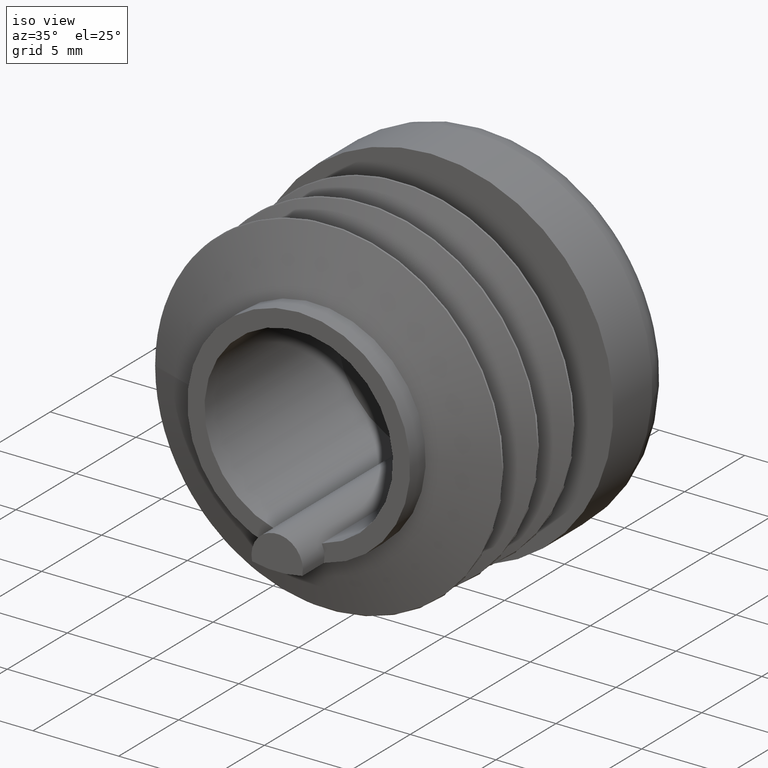
[diagram: clean part render]
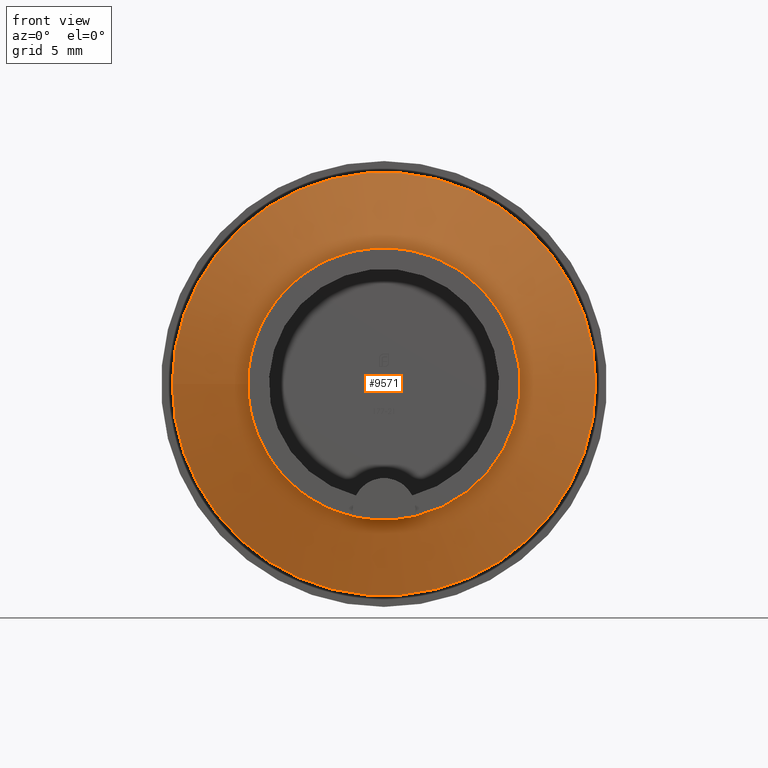
[diagram: tour spotlight — one face highlighted and labeled with its STEP entity id]
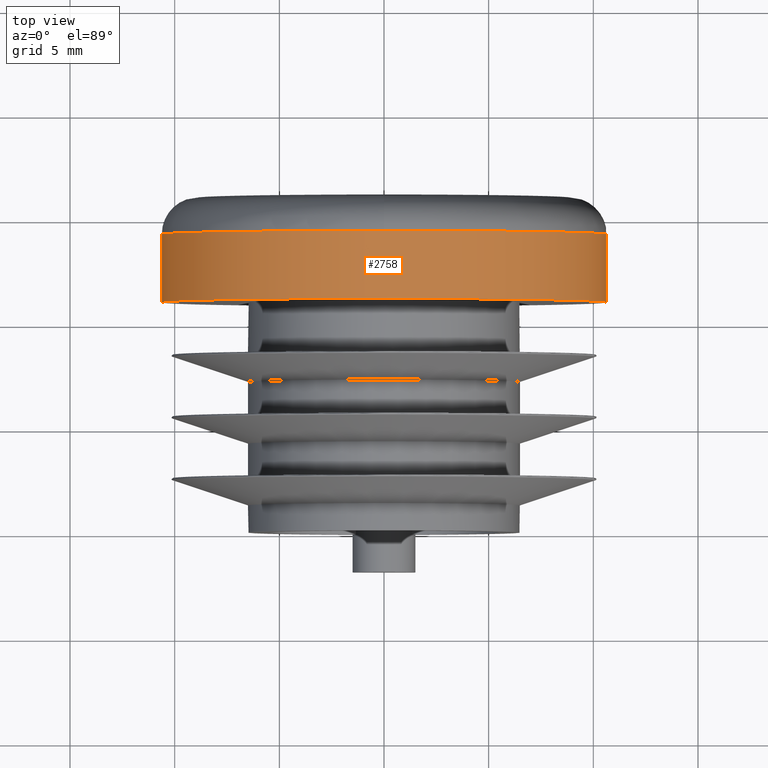
[diagram: tour spotlight — one face highlighted and labeled with its STEP entity id]
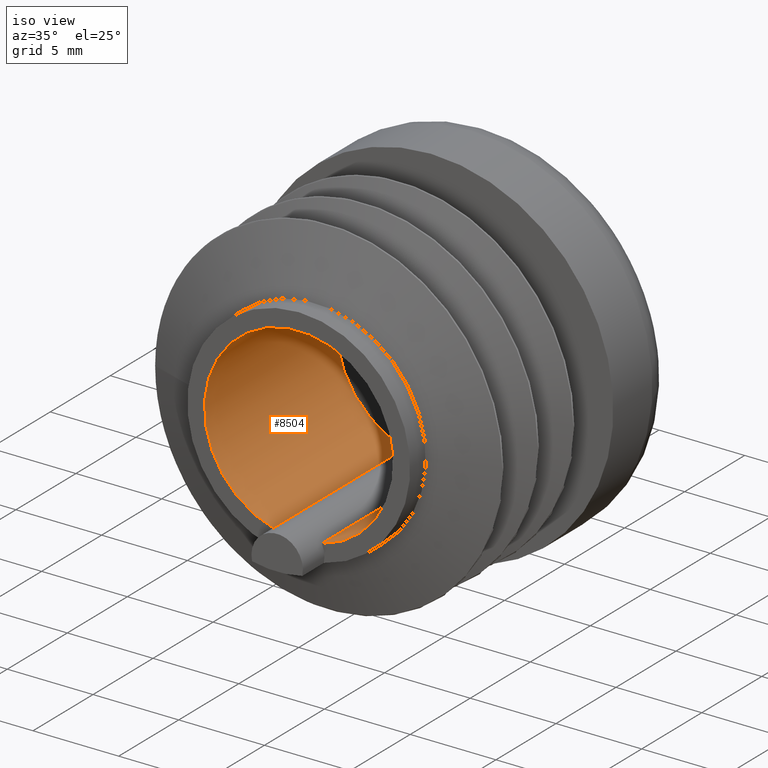
[diagram: tour spotlight — one face highlighted and labeled with its STEP entity id]
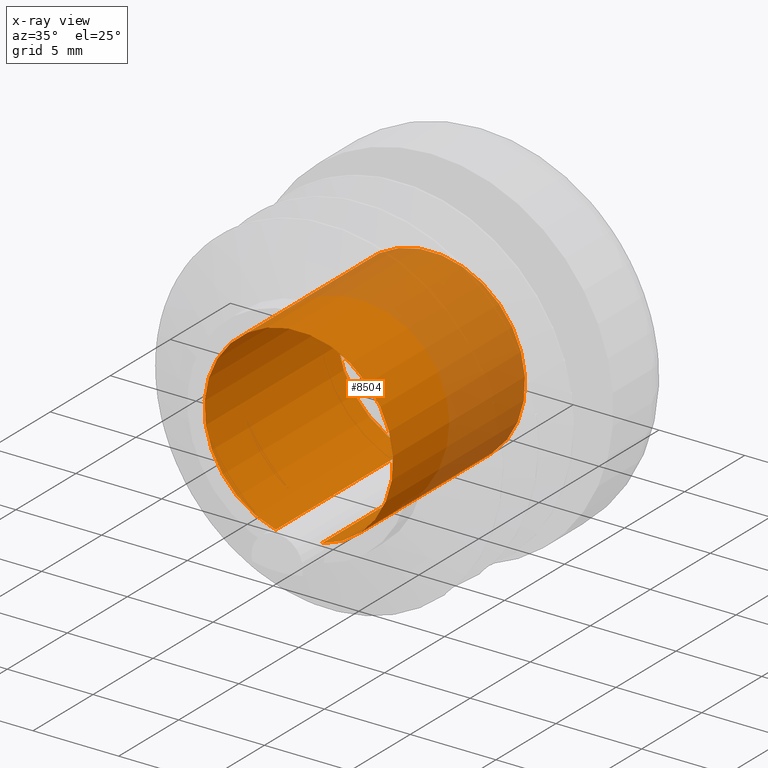
[diagram: x-ray of the same camera — body ghosted, this tour face saturated]
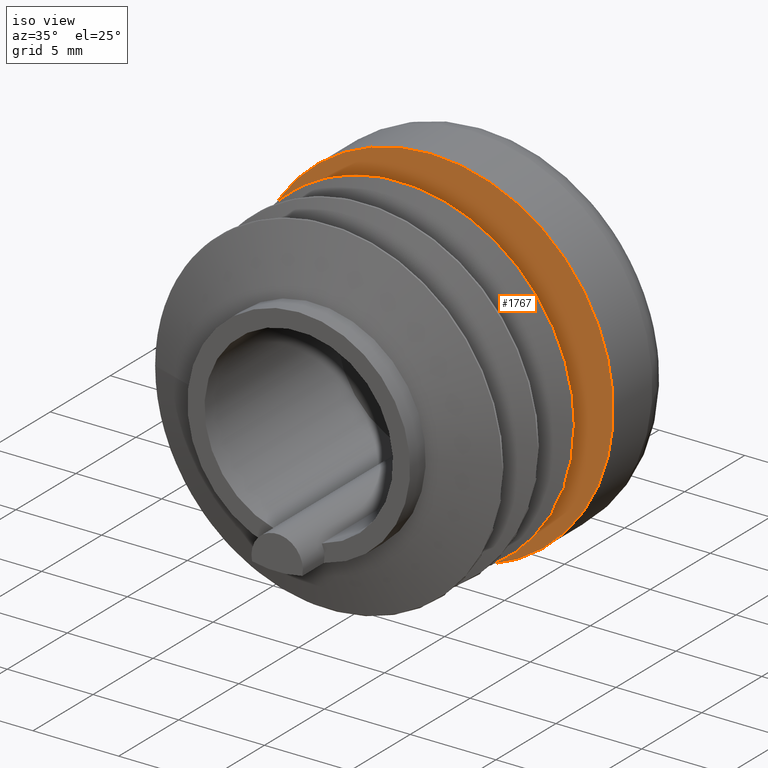
[diagram: tour spotlight — one face highlighted and labeled with its STEP entity id]
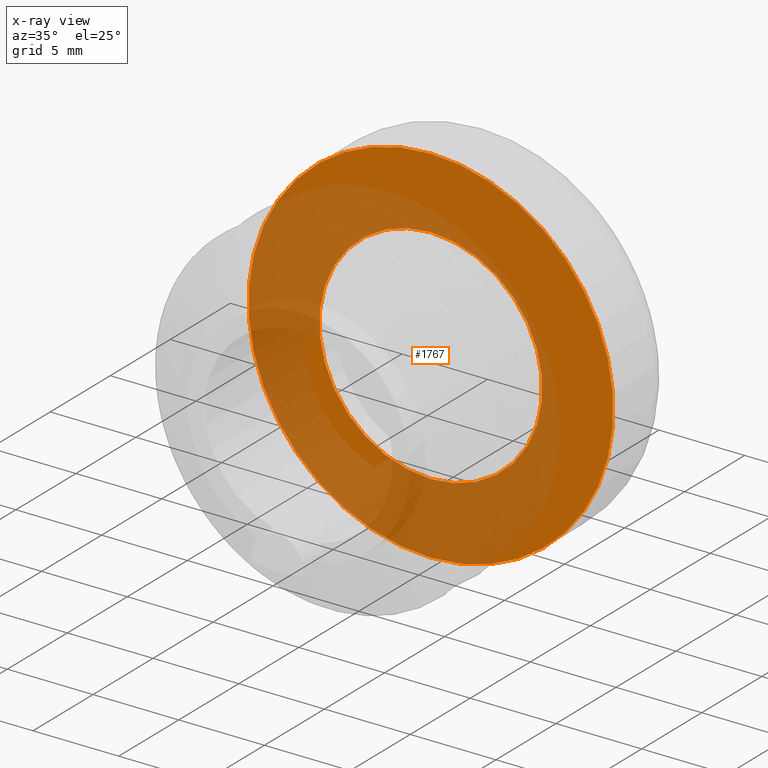
[diagram: x-ray of the same camera — body ghosted, this tour face saturated]
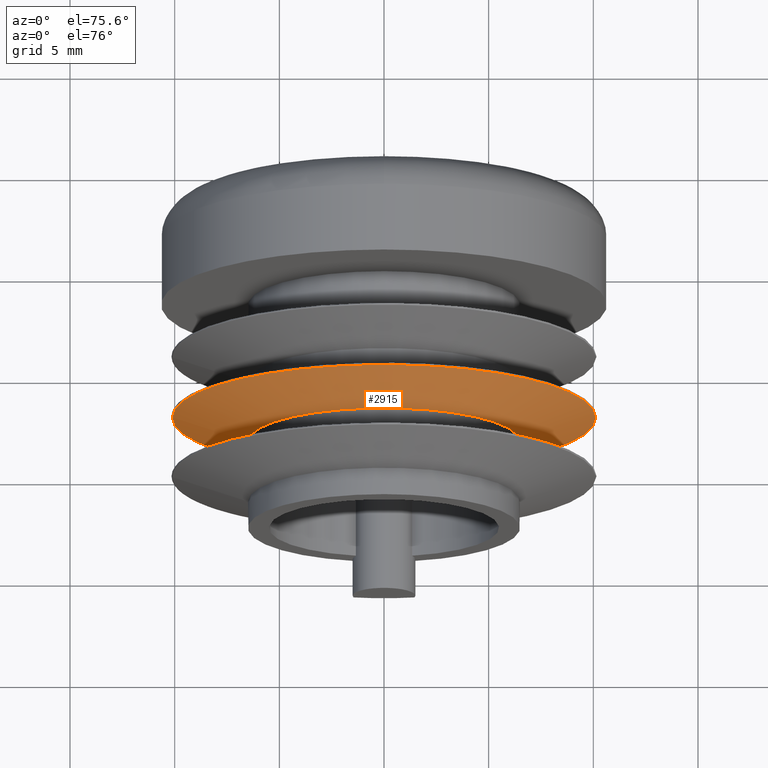
[diagram: tour spotlight — one face highlighted and labeled with its STEP entity id]
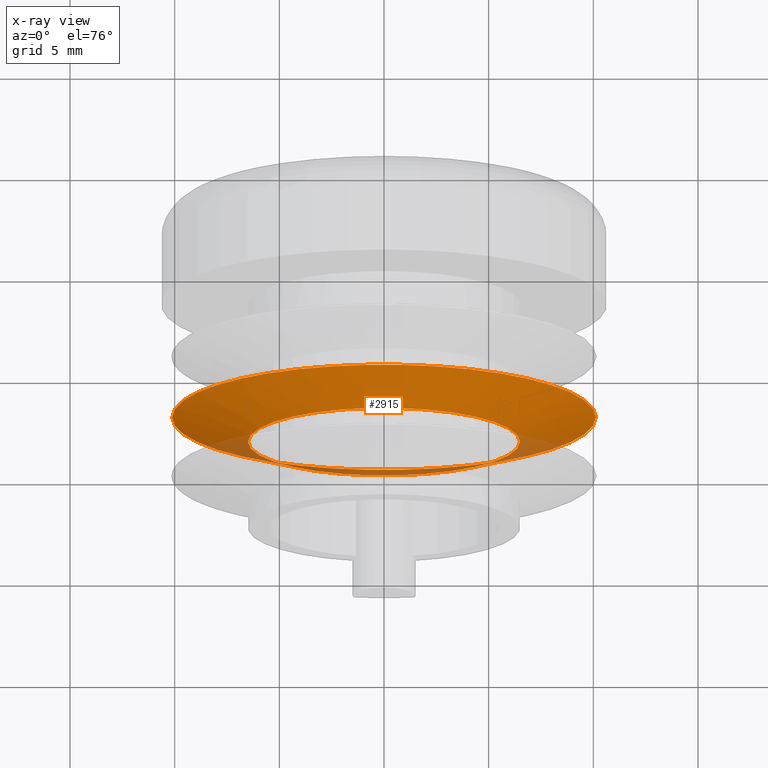
[diagram: x-ray of the same camera — body ghosted, this tour face saturated]
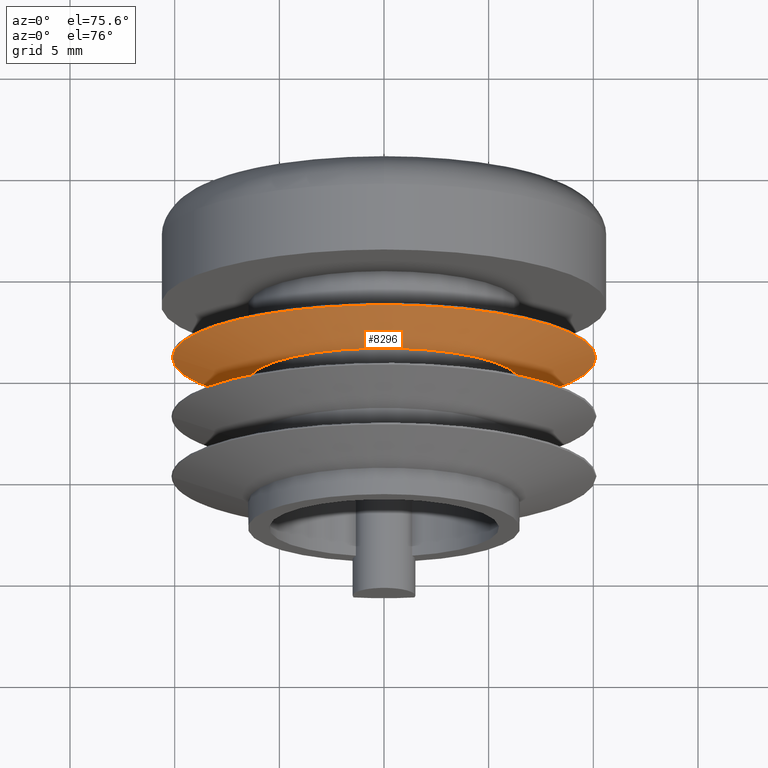
[diagram: tour spotlight — one face highlighted and labeled with its STEP entity id]
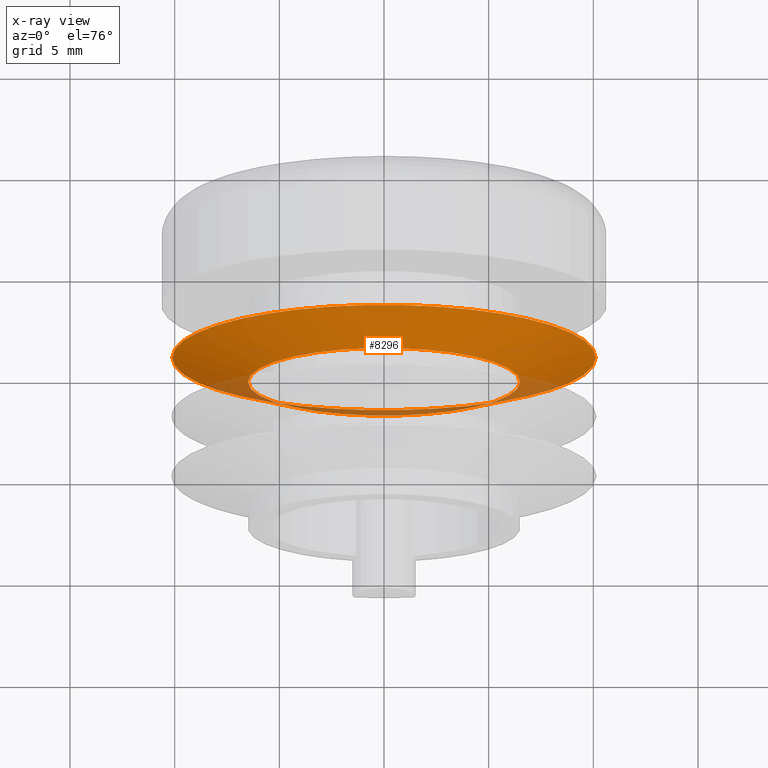
[diagram: x-ray of the same camera — body ghosted, this tour face saturated]
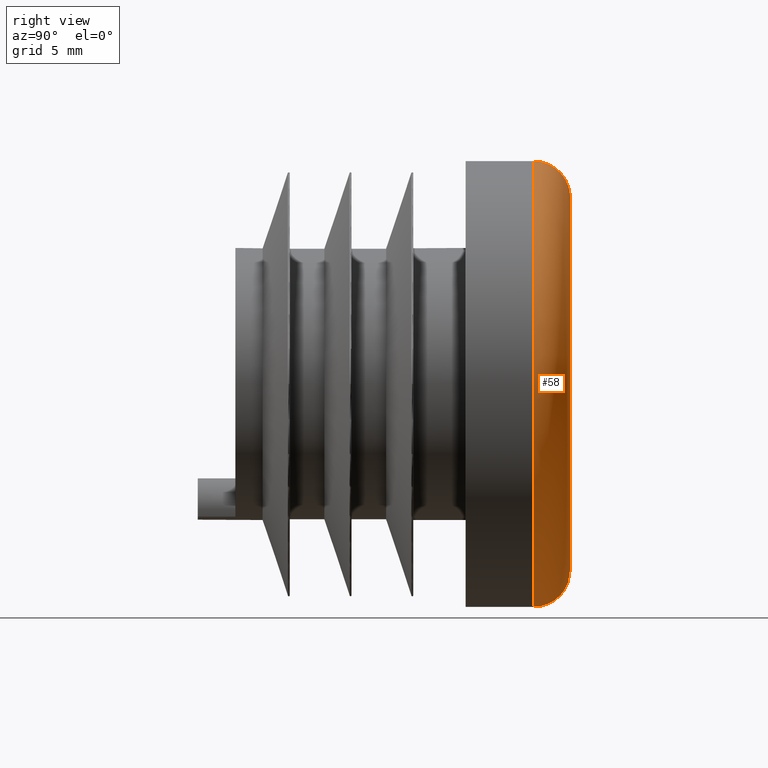
[diagram: tour spotlight — one face highlighted and labeled with its STEP entity id]
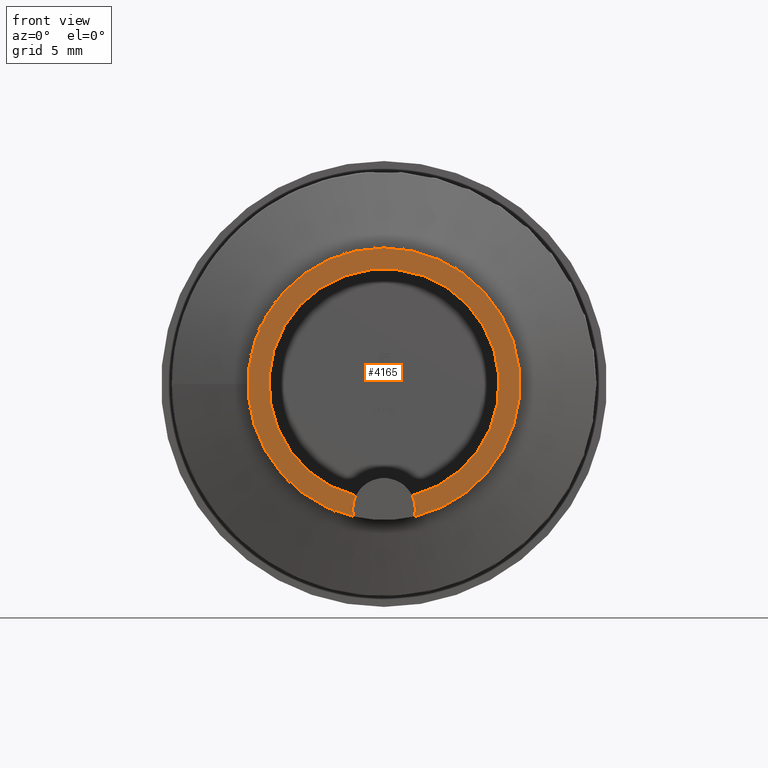
[diagram: tour spotlight — one face highlighted and labeled with its STEP entity id]
A machine part: a face-by-face anatomy tour. The part has 222 B-rep faces; the first image is the clean iso view, then the 8 largest visible faces are spotlighted one at a time (largest first), each with its STEP entity span.

Face 1 — front view, entity #9571. In plain terms, the highlighted conical surface has half-angle 71.604 deg.
Definition (entity closure, byte-faithful):
#178 = ORIENTED_EDGE ( 'NONE', *, *, #5224, .T. ) ;
#716 = EDGE_LOOP ( 'NONE', ( #178 ) ) ;
#983 = EDGE_CURVE ( 'NONE', #5095, #5095, #7223, .T. ) ;
#1338 = CARTESIAN_POINT ( 'NONE',  ( 10.11577944472657009, 2.502555199187690871, 0.000000000000000000 ) ) ;
#1396 = CARTESIAN_POINT ( 'NONE',  ( -6.500000000000012434, 1.299999999999838618, 0.000000000000000000 ) ) ;
#1506 = CONICAL_SURFACE ( 'NONE', #4269, 6.500000000000074607, 1.249719126558173521 ) ;
#2475 = AXIS2_PLACEMENT_3D ( 'NONE', #2995, #6040, #9149 ) ;
#2995 = CARTESIAN_POINT ( 'NONE',  ( -1.361677722148724505E-14, 1.299999999999906786, 0.000000000000000000 ) ) ;
#3332 = FACE_OUTER_BOUND ( 'NONE', #3748, .T. ) ;
#3714 = CARTESIAN_POINT ( 'NONE',  ( -2.621287433216494465E-14, 2.502555199187584734, 0.000000000000000000 ) ) ;
#3748 = EDGE_LOOP ( 'NONE', ( #9514 ) ) ;
#4269 = AXIS2_PLACEMENT_3D ( 'NONE', #9934, #9905, #7491 ) ;
#5095 = VERTEX_POINT ( 'NONE', #1338 ) ;
#5224 = EDGE_CURVE ( 'NONE', #8227, #8227, #8142, .T. ) ;
#6040 = DIRECTION ( 'NONE',  ( -1.047444401652940164E-14, 1.000000000000000000, 0.000000000000000000 ) ) ;
#6498 = DIRECTION ( 'NONE',  ( 1.000000000000000000, 1.046069980200573939E-14, 0.000000000000000000 ) ) ;
#7223 = CIRCLE ( 'NONE', #7670, 10.11577944472659674 ) ;
#7491 = DIRECTION ( 'NONE',  ( -1.000000000000000000, -1.047506098955213771E-14, 0.000000000000000000 ) ) ;
#7670 = AXIS2_PLACEMENT_3D ( 'NONE', #3714, #9094, #6498 ) ;
#8142 = CIRCLE ( 'NONE', #2475, 6.499999999999999112 ) ;
#8227 = VERTEX_POINT ( 'NONE', #1396 ) ;
#8604 = FACE_BOUND ( 'NONE', #716, .T. ) ;
#9094 = DIRECTION ( 'NONE',  ( 1.047444401652940164E-14, -1.000000000000000000, -0.000000000000000000 ) ) ;
#9149 = DIRECTION ( 'NONE',  ( -1.000000000000000000, -1.047506098955225919E-14, 0.000000000000000000 ) ) ;
#9514 = ORIENTED_EDGE ( 'NONE', *, *, #983, .T. ) ;
#9571 = ADVANCED_FACE ( 'NONE', ( #3332, #8604 ), #1506, .T. ) ;
#9905 = DIRECTION ( 'NONE',  ( -1.047444401652940164E-14, 1.000000000000000000, 0.000000000000000000 ) ) ;
#9934 = CARTESIAN_POINT ( 'NONE',  ( -1.361677722148750853E-14, 1.299999999999931877, 0.000000000000000000 ) ) ;

Face 2 — top view, entity #2758. In plain terms, the highlighted cylindrical surface (bore or boss wall) has radius 10.65 mm, axis along (-0, -1, -0).
Definition (entity closure, byte-faithful):
#1268 = CARTESIAN_POINT ( 'NONE',  ( 0.000000000000000000, 14.25000000000000000, 0.000000000000000000 ) ) ;
#1969 = CARTESIAN_POINT ( 'NONE',  ( 0.000000000000000000, 11.00000000000000178, 0.000000000000000000 ) ) ;
#2758 = ADVANCED_FACE ( 'NONE', ( #2934, #7250 ), #3145, .T. ) ;
#2934 = FACE_OUTER_BOUND ( 'NONE', #6318, .T. ) ;
#2976 = AXIS2_PLACEMENT_3D ( 'NONE', #1969, #9014, #7451 ) ;
#3145 = CYLINDRICAL_SURFACE ( 'NONE', #3518, 10.64999999999999858 ) ;
#3518 = AXIS2_PLACEMENT_3D ( 'NONE', #6155, #8482, #5420 ) ;
#5147 = EDGE_CURVE ( 'NONE', #9202, #9202, #9826, .T. ) ;
#5158 = CARTESIAN_POINT ( 'NONE',  ( 0.000000000000000000, 14.25000000000000000, 10.64999999999999858 ) ) ;
#5420 = DIRECTION ( 'NONE',  ( 0.000000000000000000, 0.000000000000000000, -1.000000000000000000 ) ) ;
#5836 = DIRECTION ( 'NONE',  ( 0.000000000000000000, 0.000000000000000000, 1.000000000000000000 ) ) ;
#6155 = CARTESIAN_POINT ( 'NONE',  ( 0.000000000000000000, 11.00000000000000000, 0.000000000000000000 ) ) ;
#6318 = EDGE_LOOP ( 'NONE', ( #7571 ) ) ;
#6604 = ORIENTED_EDGE ( 'NONE', *, *, #5147, .F. ) ;
#6925 = EDGE_CURVE ( 'NONE', #7996, #7996, #8735, .T. ) ;
#7250 = FACE_OUTER_BOUND ( 'NONE', #7634, .T. ) ;
#7433 = DIRECTION ( 'NONE',  ( -0.000000000000000000, -1.000000000000000000, -0.000000000000000000 ) ) ;
#7451 = DIRECTION ( 'NONE',  ( 0.000000000000000000, 0.000000000000000000, -1.000000000000000000 ) ) ;
#7472 = CARTESIAN_POINT ( 'NONE',  ( 0.000000000000000000, 11.00000000000000178, -10.64999999999999858 ) ) ;
#7571 = ORIENTED_EDGE ( 'NONE', *, *, #6925, .T. ) ;
#7634 = EDGE_LOOP ( 'NONE', ( #6604 ) ) ;
#7996 = VERTEX_POINT ( 'NONE', #5158 ) ;
#8482 = DIRECTION ( 'NONE',  ( -0.000000000000000000, -1.000000000000000000, -0.000000000000000000 ) ) ;
#8735 = CIRCLE ( 'NONE', #9518, 10.64999999999999858 ) ;
#9014 = DIRECTION ( 'NONE',  ( -0.000000000000000000, -1.000000000000000000, -0.000000000000000000 ) ) ;
#9202 = VERTEX_POINT ( 'NONE', #7472 ) ;
#9518 = AXIS2_PLACEMENT_3D ( 'NONE', #1268, #7433, #5836 ) ;
#9826 = CIRCLE ( 'NONE', #2976, 10.64999999999999858 ) ;

Face 3 — iso view, entity #8504. An x-ray twin of the same camera follows (body ghosted, this face saturated) — the face is partly hidden behind the body. In plain terms, the highlighted cylindrical surface (partial cylindrical patch) has radius 5.5 mm, axis along (-0, -1, -0).
Definition (entity closure, byte-faithful):
#100 = CIRCLE ( 'NONE', #8805, 5.500000000000000000 ) ;
#222 = FACE_OUTER_BOUND ( 'NONE', #6694, .T. ) ;
#1141 = VECTOR ( 'NONE', #2540, 1000.000000000000000 ) ;
#1499 = DIRECTION ( 'NONE',  ( 0.000000000000000000, 0.000000000000000000, -1.000000000000000000 ) ) ;
#1505 = CARTESIAN_POINT ( 'NONE',  ( -1.343709624716428408, 5.500000000000000000, -5.333333333333332149 ) ) ;
#1511 = DIRECTION ( 'NONE',  ( -0.000000000000000000, -1.000000000000000000, -0.000000000000000000 ) ) ;
#1742 = LINE ( 'NONE', #1505, #5574 ) ;
#1983 = LINE ( 'NONE', #8585, #1141 ) ;
#2235 = EDGE_CURVE ( 'NONE', #6469, #9188, #1983, .T. ) ;
#2469 = EDGE_CURVE ( 'NONE', #9172, #7856, #1742, .T. ) ;
#2540 = DIRECTION ( 'NONE',  ( -0.000000000000000000, -1.000000000000000000, -0.000000000000000000 ) ) ;
#2752 = AXIS2_PLACEMENT_3D ( 'NONE', #9320, #5470, #1499 ) ;
#2760 = CIRCLE ( 'NONE', #2752, 5.500000000000000000 ) ;
#3339 = ORIENTED_EDGE ( 'NONE', *, *, #8838, .F. ) ;
#3342 = CYLINDRICAL_SURFACE ( 'NONE', #7691, 5.500000000000000000 ) ;
#3910 = EDGE_CURVE ( 'NONE', #9188, #9172, #2760, .T. ) ;
#3965 = ORIENTED_EDGE ( 'NONE', *, *, #3910, .T. ) ;
#4129 = DIRECTION ( 'NONE',  ( 0.000000000000000000, 0.000000000000000000, -1.000000000000000000 ) ) ;
#5470 = DIRECTION ( 'NONE',  ( -0.000000000000000000, -1.000000000000000000, -0.000000000000000000 ) ) ;
#5574 = VECTOR ( 'NONE', #9951, 1000.000000000000000 ) ;
#5740 = DIRECTION ( 'NONE',  ( -0.000000000000000000, -1.000000000000000000, -0.000000000000000000 ) ) ;
#6041 = DIRECTION ( 'NONE',  ( 0.000000000000000000, 0.000000000000000000, -1.000000000000000000 ) ) ;
#6101 = CARTESIAN_POINT ( 'NONE',  ( 0.000000000000000000, 11.00000000000000000, 0.000000000000000000 ) ) ;
#6168 = CARTESIAN_POINT ( 'NONE',  ( 1.343709624716427742, 0.000000000000000000, -5.333333333333332149 ) ) ;
#6468 = CARTESIAN_POINT ( 'NONE',  ( 0.000000000000000000, 11.00000000000000000, 0.000000000000000000 ) ) ;
#6469 = VERTEX_POINT ( 'NONE', #8030 ) ;
#6694 = EDGE_LOOP ( 'NONE', ( #9270, #3965, #9035, #3339 ) ) ;
#6963 = CARTESIAN_POINT ( 'NONE',  ( -1.343709624716428852, 11.00000000000000000, -5.333333333333332149 ) ) ;
#7669 = CARTESIAN_POINT ( 'NONE',  ( -1.343709624716427742, 0.000000000000000000, -5.333333333333332149 ) ) ;
#7691 = AXIS2_PLACEMENT_3D ( 'NONE', #6101, #1511, #6041 ) ;
#7856 = VERTEX_POINT ( 'NONE', #6963 ) ;
#8030 = CARTESIAN_POINT ( 'NONE',  ( 1.343709624716427964, 11.00000000000000000, -5.333333333333332149 ) ) ;
#8504 = ADVANCED_FACE ( 'NONE', ( #222 ), #3342, .F. ) ;
#8585 = CARTESIAN_POINT ( 'NONE',  ( 1.343709624716428408, 5.500000000000000000, -5.333333333333332149 ) ) ;
#8805 = AXIS2_PLACEMENT_3D ( 'NONE', #6468, #5740, #4129 ) ;
#8838 = EDGE_CURVE ( 'NONE', #6469, #7856, #100, .T. ) ;
#9035 = ORIENTED_EDGE ( 'NONE', *, *, #2469, .T. ) ;
#9172 = VERTEX_POINT ( 'NONE', #7669 ) ;
#9188 = VERTEX_POINT ( 'NONE', #6168 ) ;
#9270 = ORIENTED_EDGE ( 'NONE', *, *, #2235, .T. ) ;
#9320 = CARTESIAN_POINT ( 'NONE',  ( 0.000000000000000000, 0.000000000000000000, 0.000000000000000000 ) ) ;
#9951 = DIRECTION ( 'NONE',  ( 0.000000000000000000, 1.000000000000000000, 0.000000000000000000 ) ) ;

Face 4 — iso view, entity #1767. An x-ray twin of the same camera follows (body ghosted, this face saturated) — the face is partly hidden behind the body. In plain terms, the highlighted planar face has unit normal (0, -1, -0).
Definition (entity closure, byte-faithful):
#114 = EDGE_CURVE ( 'NONE', #1629, #1629, #9530, .T. ) ;
#378 = EDGE_LOOP ( 'NONE', ( #2984 ) ) ;
#436 = AXIS2_PLACEMENT_3D ( 'NONE', #9223, #6109, #2366 ) ;
#825 = PLANE ( 'NONE',  #436 ) ;
#1629 = VERTEX_POINT ( 'NONE', #6061 ) ;
#1767 = ADVANCED_FACE ( 'NONE', ( #9649, #2049 ), #825, .T. ) ;
#1969 = CARTESIAN_POINT ( 'NONE',  ( 0.000000000000000000, 11.00000000000000178, 0.000000000000000000 ) ) ;
#2049 = FACE_BOUND ( 'NONE', #378, .T. ) ;
#2366 = DIRECTION ( 'NONE',  ( 0.000000000000000000, 0.000000000000000000, -1.000000000000000000 ) ) ;
#2976 = AXIS2_PLACEMENT_3D ( 'NONE', #1969, #9014, #7451 ) ;
#2984 = ORIENTED_EDGE ( 'NONE', *, *, #114, .F. ) ;
#3101 = DIRECTION ( 'NONE',  ( 0.000000000000000000, 0.000000000000000000, -1.000000000000000000 ) ) ;
#5147 = EDGE_CURVE ( 'NONE', #9202, #9202, #9826, .T. ) ;
#5449 = CARTESIAN_POINT ( 'NONE',  ( 0.000000000000000000, 11.00000000000000178, 0.000000000000000000 ) ) ;
#6061 = CARTESIAN_POINT ( 'NONE',  ( 0.000000000000000000, 11.00000000000000178, -6.499999999999997335 ) ) ;
#6109 = DIRECTION ( 'NONE',  ( 0.000000000000000000, -1.000000000000000000, -0.000000000000000000 ) ) ;
#7089 = EDGE_LOOP ( 'NONE', ( #8092 ) ) ;
#7451 = DIRECTION ( 'NONE',  ( 0.000000000000000000, 0.000000000000000000, -1.000000000000000000 ) ) ;
#7472 = CARTESIAN_POINT ( 'NONE',  ( 0.000000000000000000, 11.00000000000000178, -10.64999999999999858 ) ) ;
#7687 = DIRECTION ( 'NONE',  ( -0.000000000000000000, -1.000000000000000000, -0.000000000000000000 ) ) ;
#8092 = ORIENTED_EDGE ( 'NONE', *, *, #5147, .T. ) ;
#8917 = AXIS2_PLACEMENT_3D ( 'NONE', #5449, #7687, #3101 ) ;
#9014 = DIRECTION ( 'NONE',  ( -0.000000000000000000, -1.000000000000000000, -0.000000000000000000 ) ) ;
#9202 = VERTEX_POINT ( 'NONE', #7472 ) ;
#9223 = CARTESIAN_POINT ( 'NONE',  ( 10.64999999999999858, 11.00000000000000178, 0.000000000000000000 ) ) ;
#9530 = CIRCLE ( 'NONE', #8917, 6.499999999999997335 ) ;
#9649 = FACE_OUTER_BOUND ( 'NONE', #7089, .T. ) ;
#9826 = CIRCLE ( 'NONE', #2976, 10.64999999999999858 ) ;

Face 5 — auxiliary view, entity #2915. An x-ray twin of the same camera follows (body ghosted, this face saturated) — the face is partly hidden behind the body. In plain terms, the highlighted conical surface has half-angle 71.604 deg.
Definition (entity closure, byte-faithful):
#164 = DIRECTION ( 'NONE',  ( -1.047444401652940164E-14, 1.000000000000000000, 0.000000000000000000 ) ) ;
#966 = FACE_OUTER_BOUND ( 'NONE', #1927, .T. ) ;
#1468 = CARTESIAN_POINT ( 'NONE',  ( -6.500000000000042633, 4.249999999999929834, 0.000000000000000000 ) ) ;
#1927 = EDGE_LOOP ( 'NONE', ( #5342 ) ) ;
#2815 = EDGE_CURVE ( 'NONE', #8346, #8346, #4670, .T. ) ;
#2886 = CARTESIAN_POINT ( 'NONE',  ( 10.11577944472653812, 5.452555199187781199, 0.000000000000000000 ) ) ;
#2915 = ADVANCED_FACE ( 'NONE', ( #966, #4902 ), #4299, .T. ) ;
#2968 = CIRCLE ( 'NONE', #7893, 6.499999999999999112 ) ;
#3323 = VERTEX_POINT ( 'NONE', #1468 ) ;
#3715 = DIRECTION ( 'NONE',  ( -1.000000000000000000, -1.040834085586072266E-14, 0.000000000000000000 ) ) ;
#4299 = CONICAL_SURFACE ( 'NONE', #6066, 6.500000000000074607, 1.249719126558173521 ) ;
#4670 = CIRCLE ( 'NONE', #7820, 10.11577944472659674 ) ;
#4719 = CARTESIAN_POINT ( 'NONE',  ( -4.451638707024992819E-14, 4.249999999999997335, 0.000000000000000000 ) ) ;
#4902 = FACE_BOUND ( 'NONE', #8644, .T. ) ;
#5342 = ORIENTED_EDGE ( 'NONE', *, *, #2815, .T. ) ;
#6066 = AXIS2_PLACEMENT_3D ( 'NONE', #6328, #8184, #3715 ) ;
#6328 = CARTESIAN_POINT ( 'NONE',  ( -4.451638707025019325E-14, 4.250000000000023093, 0.000000000000000000 ) ) ;
#7673 = ORIENTED_EDGE ( 'NONE', *, *, #8761, .T. ) ;
#7706 = DIRECTION ( 'NONE',  ( 1.047444401652940164E-14, -1.000000000000000000, -0.000000000000000000 ) ) ;
#7820 = AXIS2_PLACEMENT_3D ( 'NONE', #9370, #7706, #9271 ) ;
#7893 = AXIS2_PLACEMENT_3D ( 'NONE', #4719, #164, #9299 ) ;
#8184 = DIRECTION ( 'NONE',  ( -1.047444401652940164E-14, 1.000000000000000000, 0.000000000000000000 ) ) ;
#8346 = VERTEX_POINT ( 'NONE', #2886 ) ;
#8644 = EDGE_LOOP ( 'NONE', ( #7673 ) ) ;
#8761 = EDGE_CURVE ( 'NONE', #3323, #3323, #2968, .T. ) ;
#9271 = DIRECTION ( 'NONE',  ( 1.000000000000000000, 1.046069980200573939E-14, 0.000000000000000000 ) ) ;
#9299 = DIRECTION ( 'NONE',  ( -1.000000000000000000, -1.040834085586084414E-14, 0.000000000000000000 ) ) ;
#9370 = CARTESIAN_POINT ( 'NONE',  ( -5.711248418092762463E-14, 5.452555199187675505, 0.000000000000000000 ) ) ;

Face 6 — auxiliary view, entity #8296. An x-ray twin of the same camera follows (body ghosted, this face saturated) — the face is partly hidden behind the body. In plain terms, the highlighted conical surface has half-angle 71.604 deg.
Definition (entity closure, byte-faithful):
#118 = ORIENTED_EDGE ( 'NONE', *, *, #3476, .T. ) ;
#273 = DIRECTION ( 'NONE',  ( -1.000000000000000000, -1.040834085586072266E-14, 0.000000000000000000 ) ) ;
#444 = VERTEX_POINT ( 'NONE', #1432 ) ;
#794 = VERTEX_POINT ( 'NONE', #9073 ) ;
#1351 = DIRECTION ( 'NONE',  ( 1.000000000000000000, 1.046069980200573939E-14, 0.000000000000000000 ) ) ;
#1432 = CARTESIAN_POINT ( 'NONE',  ( 10.11577944472650792, 8.402555199187872859, 0.000000000000000000 ) ) ;
#1685 = EDGE_CURVE ( 'NONE', #444, #444, #9872, .T. ) ;
#2012 = FACE_OUTER_BOUND ( 'NONE', #3022, .T. ) ;
#2126 = DIRECTION ( 'NONE',  ( 1.047444401652940164E-14, -1.000000000000000000, -0.000000000000000000 ) ) ;
#2201 = CARTESIAN_POINT ( 'NONE',  ( -8.801209402969033617E-14, 8.402555199187768054, 0.000000000000000000 ) ) ;
#2956 = CARTESIAN_POINT ( 'NONE',  ( -7.541599691901261449E-14, 7.200000000000088107, 0.000000000000000000 ) ) ;
#3022 = EDGE_LOOP ( 'NONE', ( #8656 ) ) ;
#3331 = AXIS2_PLACEMENT_3D ( 'NONE', #3875, #7698, #273 ) ;
#3476 = EDGE_CURVE ( 'NONE', #794, #794, #7927, .T. ) ;
#3875 = CARTESIAN_POINT ( 'NONE',  ( -7.541599691901287954E-14, 7.200000000000113864, 0.000000000000000000 ) ) ;
#4470 = DIRECTION ( 'NONE',  ( -1.000000000000000000, -1.040834085586084414E-14, 0.000000000000000000 ) ) ;
#5358 = FACE_BOUND ( 'NONE', #6597, .T. ) ;
#5732 = CONICAL_SURFACE ( 'NONE', #3331, 6.500000000000074607, 1.249719126558173077 ) ;
#5827 = AXIS2_PLACEMENT_3D ( 'NONE', #2956, #9110, #4470 ) ;
#6597 = EDGE_LOOP ( 'NONE', ( #118 ) ) ;
#7698 = DIRECTION ( 'NONE',  ( -1.047444401652940164E-14, 1.000000000000000000, 0.000000000000000000 ) ) ;
#7927 = CIRCLE ( 'NONE', #5827, 6.499999999999999112 ) ;
#8296 = ADVANCED_FACE ( 'NONE', ( #2012, #5358 ), #5732, .T. ) ;
#8656 = ORIENTED_EDGE ( 'NONE', *, *, #1685, .T. ) ;
#9073 = CARTESIAN_POINT ( 'NONE',  ( -6.500000000000074607, 7.200000000000020606, 0.000000000000000000 ) ) ;
#9110 = DIRECTION ( 'NONE',  ( -1.047444401652940164E-14, 1.000000000000000000, 0.000000000000000000 ) ) ;
#9872 = CIRCLE ( 'NONE', #9886, 10.11577944472659674 ) ;
#9886 = AXIS2_PLACEMENT_3D ( 'NONE', #2201, #2126, #1351 ) ;

Face 7 — right view, entity #58. In plain terms, the highlighted toroidal blend (fillet) surface has major radius 8.9 mm and minor (blend) radius 1.75 mm.
Definition (entity closure, byte-faithful):
#58 = ADVANCED_FACE ( 'NONE', ( #4321, #1104 ), #9159, .T. ) ;
#886 = DIRECTION ( 'NONE',  ( 0.000000000000000000, 1.000000000000000000, 0.000000000000000000 ) ) ;
#973 = DIRECTION ( 'NONE',  ( 0.000000000000000000, 0.000000000000000000, 1.000000000000000000 ) ) ;
#1104 = FACE_OUTER_BOUND ( 'NONE', #7112, .T. ) ;
#1182 = AXIS2_PLACEMENT_3D ( 'NONE', #1477, #5303, #6843 ) ;
#1268 = CARTESIAN_POINT ( 'NONE',  ( 0.000000000000000000, 14.25000000000000000, 0.000000000000000000 ) ) ;
#1477 = CARTESIAN_POINT ( 'NONE',  ( 0.000000000000000000, 14.25000000000000000, 0.000000000000000000 ) ) ;
#1992 = VERTEX_POINT ( 'NONE', #9045 ) ;
#2726 = CIRCLE ( 'NONE', #9261, 8.899999999999998579 ) ;
#4321 = FACE_OUTER_BOUND ( 'NONE', #4525, .T. ) ;
#4525 = EDGE_LOOP ( 'NONE', ( #5398 ) ) ;
#4710 = CARTESIAN_POINT ( 'NONE',  ( 0.000000000000000000, 16.00000000000000000, 0.000000000000000000 ) ) ;
#5158 = CARTESIAN_POINT ( 'NONE',  ( 0.000000000000000000, 14.25000000000000000, 10.64999999999999858 ) ) ;
#5303 = DIRECTION ( 'NONE',  ( 0.000000000000000000, 1.000000000000000000, 0.000000000000000000 ) ) ;
#5398 = ORIENTED_EDGE ( 'NONE', *, *, #9247, .F. ) ;
#5836 = DIRECTION ( 'NONE',  ( 0.000000000000000000, 0.000000000000000000, 1.000000000000000000 ) ) ;
#6843 = DIRECTION ( 'NONE',  ( 0.000000000000000000, 0.000000000000000000, 1.000000000000000000 ) ) ;
#6925 = EDGE_CURVE ( 'NONE', #7996, #7996, #8735, .T. ) ;
#7112 = EDGE_LOOP ( 'NONE', ( #8424 ) ) ;
#7433 = DIRECTION ( 'NONE',  ( -0.000000000000000000, -1.000000000000000000, -0.000000000000000000 ) ) ;
#7996 = VERTEX_POINT ( 'NONE', #5158 ) ;
#8424 = ORIENTED_EDGE ( 'NONE', *, *, #6925, .F. ) ;
#8735 = CIRCLE ( 'NONE', #9518, 10.64999999999999858 ) ;
#9045 = CARTESIAN_POINT ( 'NONE',  ( 0.000000000000000000, 16.00000000000000000, 8.899999999999998579 ) ) ;
#9159 = TOROIDAL_SURFACE ( 'NONE', #1182, 8.899999999999998579, 1.750000000000000000 ) ;
#9247 = EDGE_CURVE ( 'NONE', #1992, #1992, #2726, .T. ) ;
#9261 = AXIS2_PLACEMENT_3D ( 'NONE', #4710, #886, #973 ) ;
#9518 = AXIS2_PLACEMENT_3D ( 'NONE', #1268, #7433, #5836 ) ;

Face 8 — front view, entity #4165. In plain terms, the highlighted planar face has unit normal (0, -1, -0).
Definition (entity closure, byte-faithful):
#246 = CARTESIAN_POINT ( 'NONE',  ( 6.500000000000000000, 3.061616997868375006E-17, 0.000000000000000000 ) ) ;
#771 = ORIENTED_EDGE ( 'NONE', *, *, #8772, .F. ) ;
#976 = DIRECTION ( 'NONE',  ( 0.000000000000000000, 0.000000000000000000, -1.000000000000000000 ) ) ;
#988 = CARTESIAN_POINT ( 'NONE',  ( 0.000000000000000000, 0.000000000000000000, -6.000000000000000000 ) ) ;
#1166 = CARTESIAN_POINT ( 'NONE',  ( 1.462494064565357021, 0.000000000000000000, -6.333333333333333925 ) ) ;
#1499 = DIRECTION ( 'NONE',  ( 0.000000000000000000, 0.000000000000000000, -1.000000000000000000 ) ) ;
#2017 = DIRECTION ( 'NONE',  ( 0.000000000000000000, -1.000000000000000000, 0.000000000000000000 ) ) ;
#2107 = CARTESIAN_POINT ( 'NONE',  ( 0.000000000000000000, 0.000000000000000000, -6.000000000000000000 ) ) ;
#2118 = CIRCLE ( 'NONE', #8268, 1.500000000000003109 ) ;
#2752 = AXIS2_PLACEMENT_3D ( 'NONE', #9320, #5470, #1499 ) ;
#2760 = CIRCLE ( 'NONE', #2752, 5.500000000000000000 ) ;
#3587 = DIRECTION ( 'NONE',  ( 0.000000000000000000, 0.000000000000000000, -1.000000000000000000 ) ) ;
#3673 = CARTESIAN_POINT ( 'NONE',  ( 0.000000000000000000, 0.000000000000000000, 0.000000000000000000 ) ) ;
#3702 = DIRECTION ( 'NONE',  ( 0.000000000000000000, 0.000000000000000000, -1.000000000000000000 ) ) ;
#3900 = DIRECTION ( 'NONE',  ( 0.000000000000000000, 0.000000000000000000, -1.000000000000000000 ) ) ;
#3910 = EDGE_CURVE ( 'NONE', #9188, #9172, #2760, .T. ) ;
#4165 = ADVANCED_FACE ( 'NONE', ( #7800 ), #7241, .T. ) ;
#4268 = AXIS2_PLACEMENT_3D ( 'NONE', #246, #4882, #976 ) ;
#4882 = DIRECTION ( 'NONE',  ( 0.000000000000000000, -1.000000000000000000, -0.000000000000000000 ) ) ;
#5309 = AXIS2_PLACEMENT_3D ( 'NONE', #3673, #6019, #3702 ) ;
#5470 = DIRECTION ( 'NONE',  ( -0.000000000000000000, -1.000000000000000000, -0.000000000000000000 ) ) ;
#6019 = DIRECTION ( 'NONE',  ( -0.000000000000000000, -1.000000000000000000, -0.000000000000000000 ) ) ;
#6168 = CARTESIAN_POINT ( 'NONE',  ( 1.343709624716427742, 0.000000000000000000, -5.333333333333332149 ) ) ;
#6335 = DIRECTION ( 'NONE',  ( 0.000000000000000000, -1.000000000000000000, 0.000000000000000000 ) ) ;
#6420 = CIRCLE ( 'NONE', #8465, 1.500000000000003109 ) ;
#6741 = ORIENTED_EDGE ( 'NONE', *, *, #7003, .F. ) ;
#7003 = EDGE_CURVE ( 'NONE', #8068, #9188, #6420, .T. ) ;
#7241 = PLANE ( 'NONE',  #4268 ) ;
#7387 = CIRCLE ( 'NONE', #5309, 6.500000000000000000 ) ;
#7669 = CARTESIAN_POINT ( 'NONE',  ( -1.343709624716427742, 0.000000000000000000, -5.333333333333332149 ) ) ;
#7800 = FACE_OUTER_BOUND ( 'NONE', #8076, .T. ) ;
#7808 = ORIENTED_EDGE ( 'NONE', *, *, #9577, .T. ) ;
#8068 = VERTEX_POINT ( 'NONE', #1166 ) ;
#8076 = EDGE_LOOP ( 'NONE', ( #6741, #7808, #771, #8181 ) ) ;
#8181 = ORIENTED_EDGE ( 'NONE', *, *, #3910, .F. ) ;
#8268 = AXIS2_PLACEMENT_3D ( 'NONE', #988, #6335, #3900 ) ;
#8465 = AXIS2_PLACEMENT_3D ( 'NONE', #2107, #2017, #3587 ) ;
#8772 = EDGE_CURVE ( 'NONE', #9172, #9304, #2118, .T. ) ;
#9172 = VERTEX_POINT ( 'NONE', #7669 ) ;
#9188 = VERTEX_POINT ( 'NONE', #6168 ) ;
#9304 = VERTEX_POINT ( 'NONE', #9380 ) ;
#9320 = CARTESIAN_POINT ( 'NONE',  ( 0.000000000000000000, 0.000000000000000000, 0.000000000000000000 ) ) ;
#9380 = CARTESIAN_POINT ( 'NONE',  ( -1.462494064565356577, 0.000000000000000000, -6.333333333333332149 ) ) ;
#9577 = EDGE_CURVE ( 'NONE', #8068, #9304, #7387, .T. ) ;